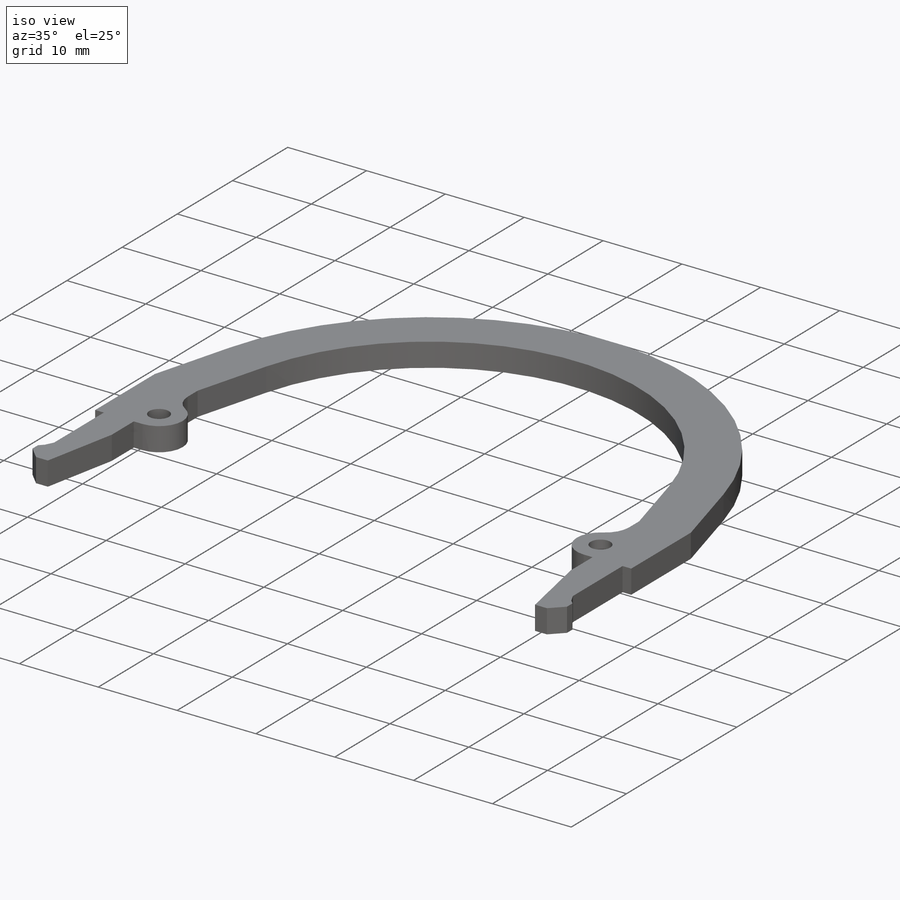
[diagram: iso view]
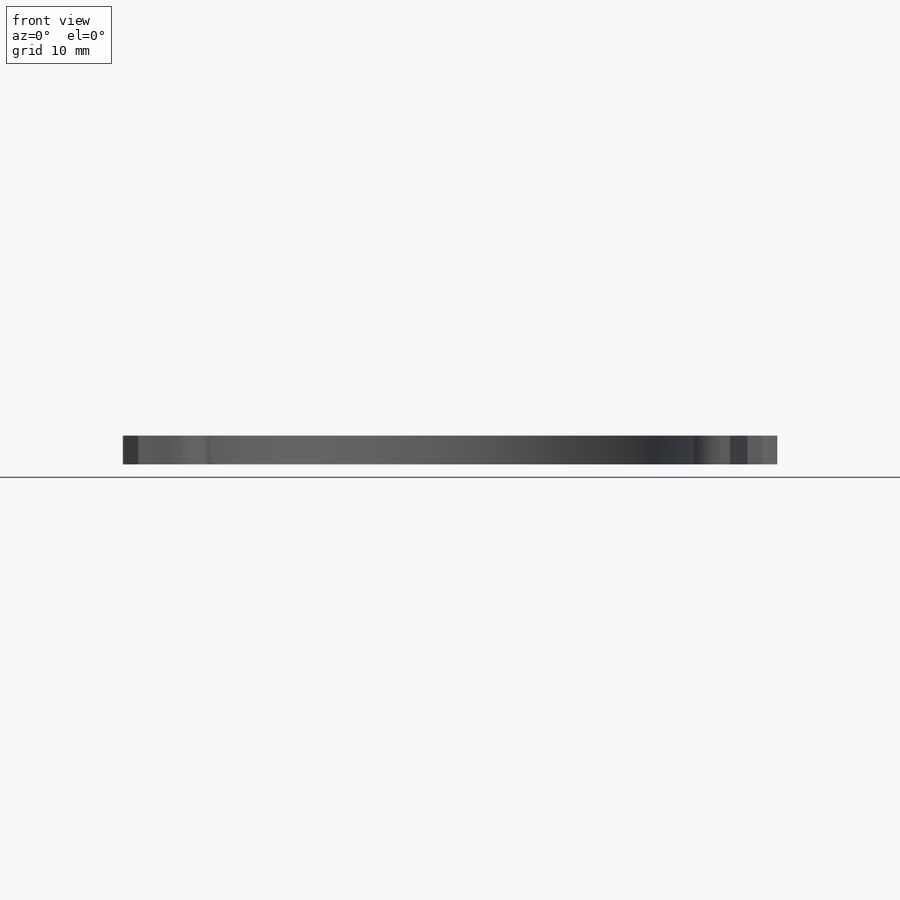
[diagram: front view]
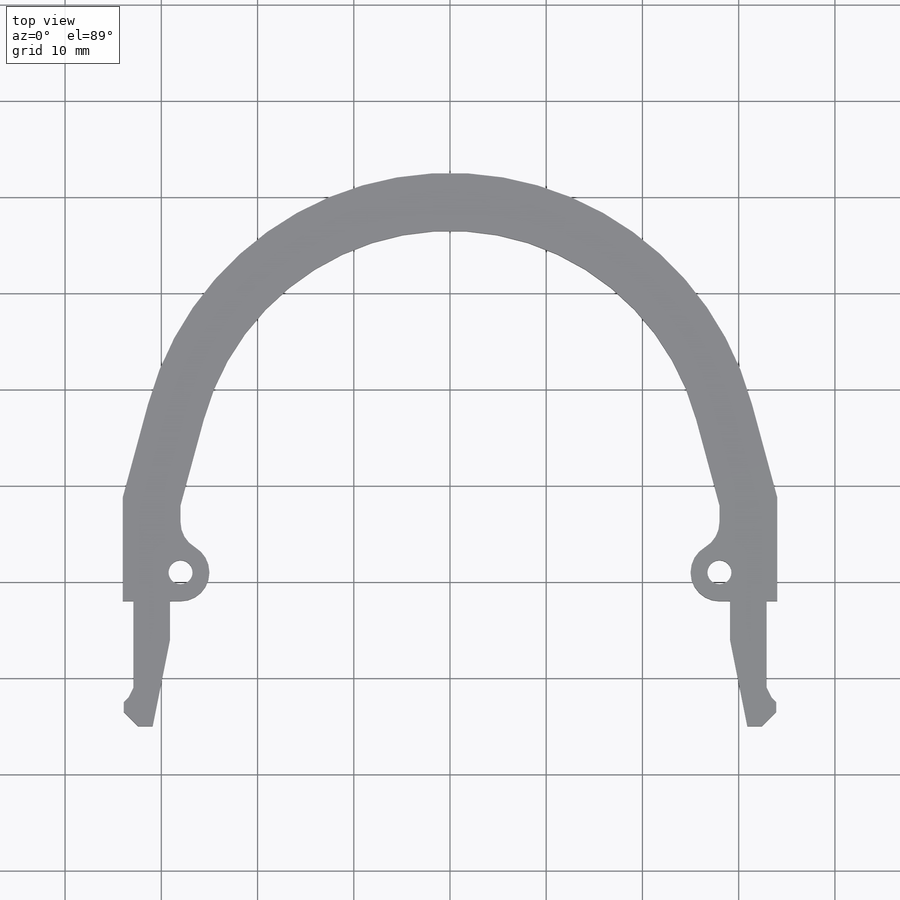
[diagram: top view]
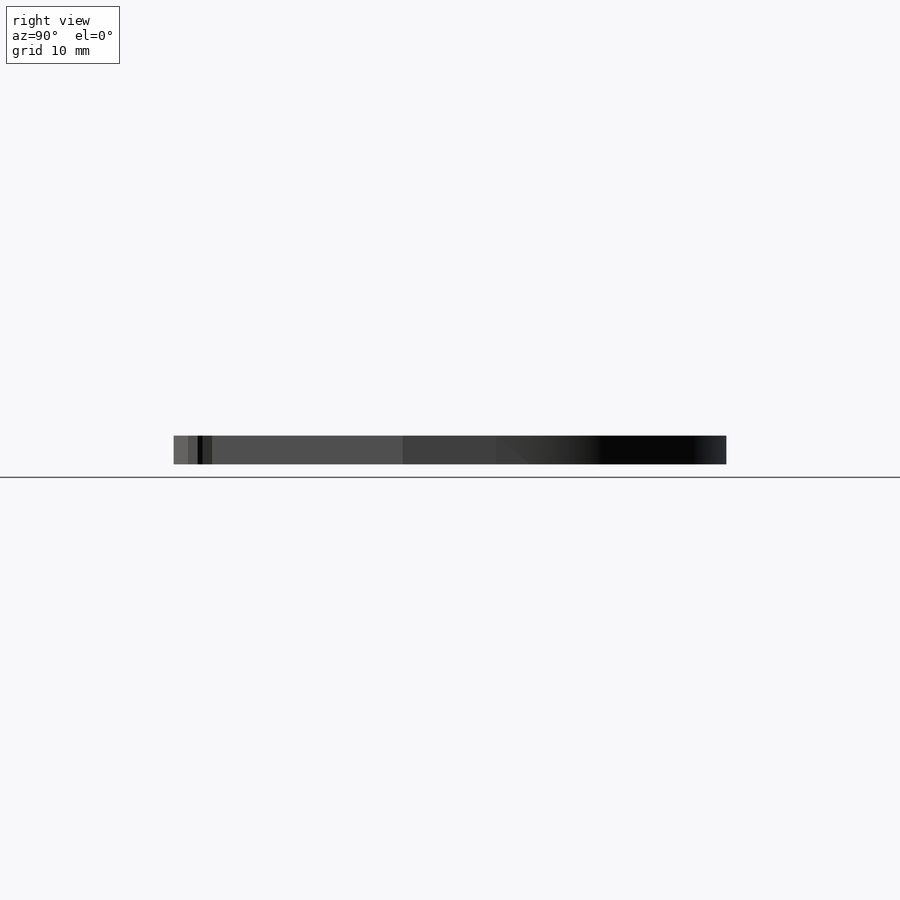
[diagram: right view]
SOLIDWORKS PART (.sldprt)
format: sldprt  version: not decoded by parser v0  size: 259,584 bytes
history: native  units: mm
features: sketch x4, extrude x2, material x1, fillet x1, cut_extrude x1, mirror x1 (+12 scaffold rows collapsed)
feature tree (22):
  scaffold x12  (default folders/planes/origin — collapsed)
  material  "Lasercut ABS"
  sketch  "Sketch1"  dims[c1.D1=26.5mm c1.D9=26.5mm c1.D2=3.0mm c1.D3=4.0mm c1.D4=7.0mm c1.D5=6.0mm c1.D6=3.0mm c1.D7=2.0mm c1.D8=59.0mm c2.D9=24.0mm c2.D2=13.0mm c2.D3=0.5mm c2.D4=1.0mm c2.D6=0.5mm c2.D7=1.0mm c2.D8=2.5mm c2.D10=1.5mm c2.D11=1.5mm c2.D12=1.5mm c2.D13=1.0mm c2.D14=0.5mm c2.D15=1.0mm c2.D16=7.0mm c3.D2=0.5mm c3.D3=10.0mm c3.D4=~11.372504mm c3.D6=~2.328778mm c3.D7=3.8mm c3.D8=4.0mm c4.D4=65.8mm c4.D6=12.0mm c4.D9=6.0mm c4.D16=~10.654838mm c5.D16=~1.899896deg c6.D16=8.0mm c6.D4=28.0mm c6.D5=65.8mm c7.D16=~8.44837mm c7.D3=13.0mm c7.D5=6.0mm c7.D7=3.8mm c8.D16=10.0mm]
  extrude  "Boss-Extrude1"  Depth=3mm
  sketch  "Sketch3"  dims[D1=3.0mm]
  extrude  "Boss-Extrude2"  [1 undecoded]
  fillet  "Fillet1"  Radius=3mm
  sketch  "Sketch4"  dims[D1=2.5mm]
  cut_extrude  "Cut-Extrude1"  [1 undecoded]
  mirror  "Mirror1"
  sketch  "Sketch2"  dims[D1=28.0mm D2=25.0mm]
decode coverage: 6 of 9 modeling features carry decoded parameters
note: ~ marks probable driven/reference dimensions
note: 2 parameter values undecoded
note: suppression state not decoded; provenance and decode notes live in map.json
